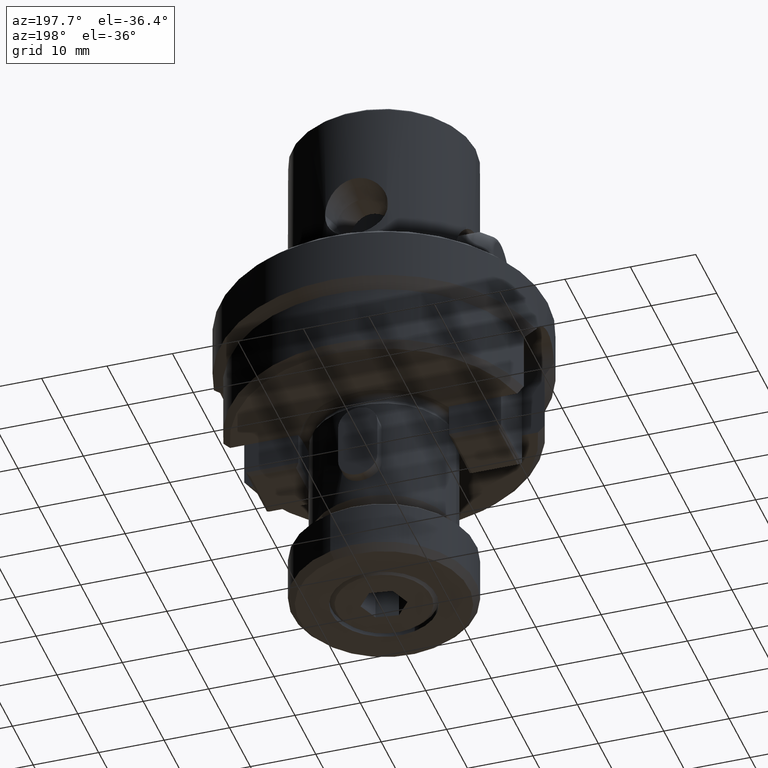
[diagram: clean part render]
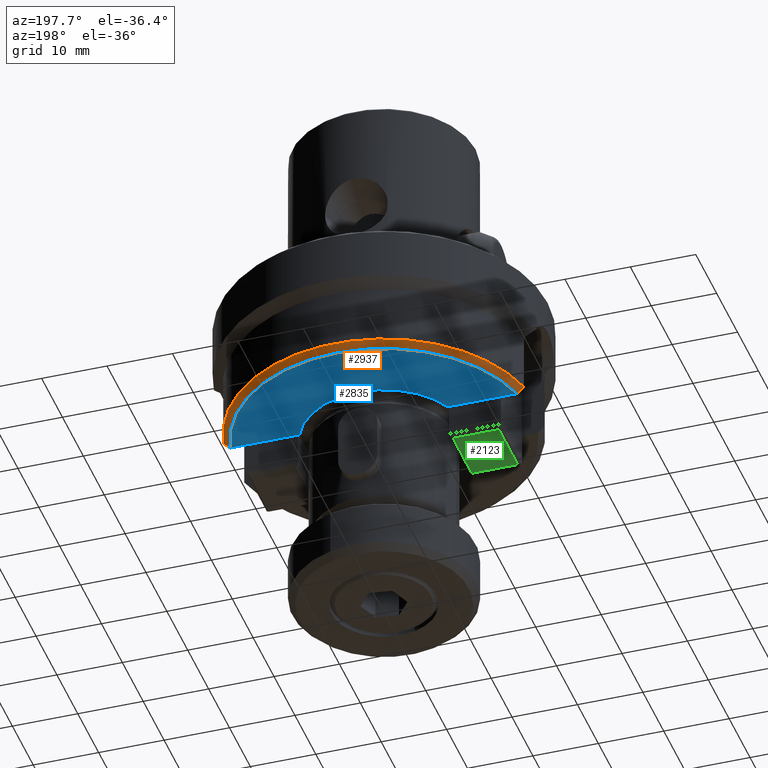
[diagram: same view with three faces highlighted in distinct colors, each labeled with its STEP entity id]
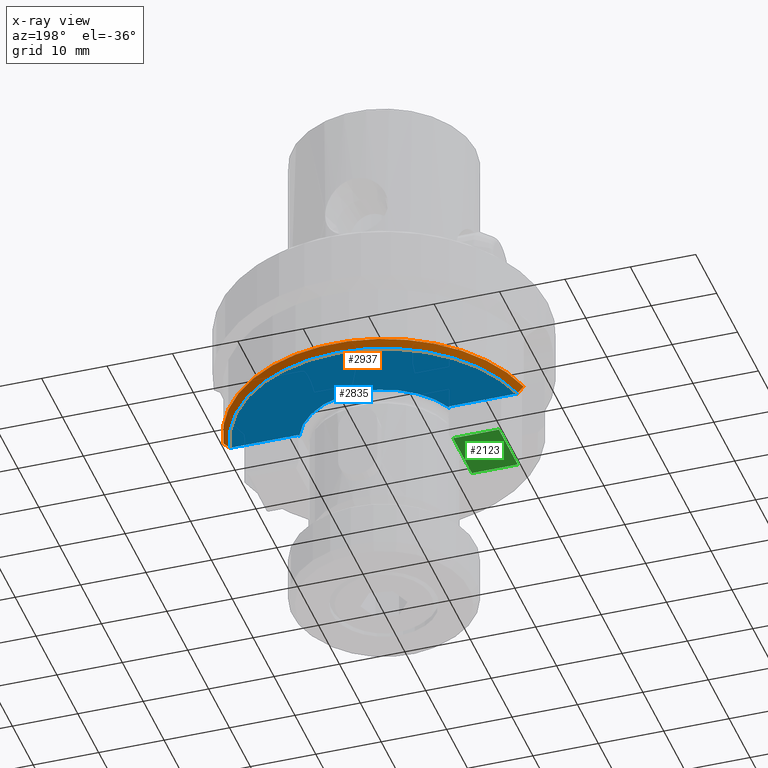
[diagram: x-ray of the same camera — body ghosted, the three highlighted faces saturated]
A machine part, auxiliary view with three faces highlighted in distinct colors.
The next image is the same camera in x-ray (body ghosted, the three faces saturated) — at least one of them is partly hidden behind the body in this view.
Their STEP definitions:

[orange] entity #2937 — the highlighted conical surface has half-angle 45 deg.
#1177=VERTEX_POINT('NONE',#3320);
#1619=VERTEX_POINT('NONE',#3823);
#1649=EDGE_CURVE('NONE',#1619,#2909,#3856,.T.);
#2495=VERTEX_POINT('NONE',#4801);
#2807=EDGE_CURVE('NONE',#1177,#2495,#5149,.T.);
#2909=VERTEX_POINT('NONE',#5260);
#2937=ADVANCED_FACE('NONE',(#5291),#5292,.T.);
#2939=EDGE_CURVE('NONE',#1619,#1177,#5294,.T.);
#2943=EDGE_CURVE('NONE',#2495,#2909,#5298,.T.);
#3320=CARTESIAN_POINT('',(-21.9374109684803,5.0,-20.0));
#3823=CARTESIAN_POINT('',(21.9374109684803,5.0,-20.0));
#3856=B_SPLINE_CURVE_WITH_KNOTS('',3,(#6707,#6708,#6709,#6710),.UNSPECIFIED.,.F.,.F.,(4,4),(0.0244728261723468,0.0259022685705429),.UNSPECIFIED.);
#4801=CARTESIAN_POINT('',(-22.9619250064101,5.0,-19.0));
#5149=B_SPLINE_CURVE_WITH_KNOTS('',3,(#8962,#8963,#8964,#8965),.UNSPECIFIED.,.F.,.F.,(4,4),(0.0244728261723468,0.0259022685705429),.UNSPECIFIED.);
#5260=CARTESIAN_POINT('',(22.9619250064101,5.0,-19.0));
#5291=FACE_OUTER_BOUND('',#9179,.T.);
#5292=CONICAL_SURFACE('',#9180,27.5,0.785398163397454);
#5294=CIRCLE('',#9183,22.5);
#5298=CIRCLE('',#9190,23.5);
#6707=CARTESIAN_POINT('',(21.9374109684803,5.0,-20.0));
#6708=CARTESIAN_POINT('',(22.2790979459101,5.0,-19.6668565490464));
#6709=CARTESIAN_POINT('',(22.6205964821224,5.0,-19.3335131905209));
#6710=CARTESIAN_POINT('',(22.9619250064101,5.0,-19.0));
#8962=CARTESIAN_POINT('',(-21.9374109684803,5.0,-20.0));
#8963=CARTESIAN_POINT('',(-22.2790979459101,5.0,-19.6668565490464));
#8964=CARTESIAN_POINT('',(-22.6205964821224,5.0,-19.3335131905209));
#8965=CARTESIAN_POINT('',(-22.9619250064101,5.0,-19.0));
#9179=EDGE_LOOP('',(#12208,#12209,#12210,#12211));
#9180=AXIS2_PLACEMENT_3D('',#12212,#12213,#12214);
#9183=AXIS2_PLACEMENT_3D('',#12215,#12216,#12217);
#9190=AXIS2_PLACEMENT_3D('',#12219,#12220,#12221);
#12208=ORIENTED_EDGE('',*,*,#2939,.T.);
#12209=ORIENTED_EDGE('',*,*,#2807,.T.);
#12210=ORIENTED_EDGE('',*,*,#2943,.T.);
#12211=ORIENTED_EDGE('',*,*,#1649,.F.);
#12212=CARTESIAN_POINT('',(0.0,0.0,-15.0000000000001));
#12213=DIRECTION('',(-0.0,-0.0,1.0));
#12214=DIRECTION('',(1.0,0.0,0.0));
#12215=CARTESIAN_POINT('',(0.0,0.0,-20.0));
#12216=DIRECTION('',(0.0,0.0,1.0));
#12217=DIRECTION('',(1.0,0.0,0.0));
#12219=CARTESIAN_POINT('',(0.0,0.0,-19.0));
#12220=DIRECTION('',(0.0,0.0,-1.0));
#12221=DIRECTION('',(1.0,0.0,0.0));

[blue] entity #2835 — the highlighted planar face has unit normal (0, 0, 1).
#1177=VERTEX_POINT('NONE',#3320);
#1325=EDGE_CURVE('NONE',#1665,#1957,#3488,.T.);
#1445=EDGE_CURVE('NONE',#1451,#1577,#3624,.T.);
#1451=VERTEX_POINT('NONE',#3631);
#1577=VERTEX_POINT('NONE',#3777);
#1619=VERTEX_POINT('NONE',#3823);
#1639=EDGE_CURVE('NONE',#1957,#1451,#3846,.T.);
#1665=VERTEX_POINT('NONE',#3875);
#1957=VERTEX_POINT('NONE',#4190);
#2251=EDGE_CURVE('NONE',#1665,#1177,#4523,.T.);
#2459=EDGE_CURVE('NONE',#1577,#1619,#4762,.T.);
#2835=ADVANCED_FACE('NONE',(#5179),#5180,.F.);
#2939=EDGE_CURVE('NONE',#1619,#1177,#5294,.T.);
#3320=CARTESIAN_POINT('',(-21.9374109684803,5.0,-20.0));
#3488=LINE('',#6035,#6036);
#3624=LINE('',#6280,#6281);
#3631=CARTESIAN_POINT('',(11.5,4.63788745012209,-20.0));
#3777=CARTESIAN_POINT('',(11.5,5.0,-20.0));
#3823=CARTESIAN_POINT('',(21.9374109684803,5.0,-20.0));
#3846=CIRCLE('',#6640,12.4);
#3875=CARTESIAN_POINT('',(-11.5,5.0,-20.0));
#4190=CARTESIAN_POINT('',(-11.5,4.63788745012209,-20.0));
#4523=LINE('',#7870,#7871);
#4762=LINE('',#8274,#8275);
#5179=FACE_OUTER_BOUND('',#9011,.T.);
#5180=PLANE('',#9012);
#5294=CIRCLE('',#9183,22.5);
#6035=CARTESIAN_POINT('',(-11.5,23.5,-20.0));
#6036=VECTOR('',#10047,1000.0);
#6280=CARTESIAN_POINT('',(11.5,23.5,-20.0));
#6281=VECTOR('',#10207,1000.0);
#6640=AXIS2_PLACEMENT_3D('',#10517,#10518,#10519);
#7870=CARTESIAN_POINT('',(0.0,5.0,-20.0));
#7871=VECTOR('',#11321,1000.0);
#8274=CARTESIAN_POINT('',(0.0,5.0,-20.0));
#8275=VECTOR('',#11629,1000.0);
#9011=EDGE_LOOP('',(#12082,#12083,#12084,#12085,#12086,#12087));
#9012=AXIS2_PLACEMENT_3D('',#12088,#12089,#12090);
#9183=AXIS2_PLACEMENT_3D('',#12215,#12216,#12217);
#10047=DIRECTION('',(0.0,-1.0,0.0));
#10207=DIRECTION('',(0.0,1.0,0.0));
#10517=CARTESIAN_POINT('',(0.0,0.0,-20.0));
#10518=DIRECTION('',(0.0,0.0,-1.0));
#10519=DIRECTION('',(1.0,-8.88178419700125E-016,0.0));
#11321=DIRECTION('',(-1.0,0.0,0.0));
#11629=DIRECTION('',(1.0,0.0,0.0));
#12082=ORIENTED_EDGE('',*,*,#2939,.F.);
#12083=ORIENTED_EDGE('',*,*,#2459,.F.);
#12084=ORIENTED_EDGE('',*,*,#1445,.F.);
#12085=ORIENTED_EDGE('',*,*,#1639,.F.);
#12086=ORIENTED_EDGE('',*,*,#1325,.F.);
#12087=ORIENTED_EDGE('',*,*,#2251,.T.);
#12088=CARTESIAN_POINT('',(0.0,23.5,-20.0));
#12089=DIRECTION('',(0.0,0.0,1.0));
#12090=DIRECTION('',(1.0,0.0,0.0));
#12215=CARTESIAN_POINT('',(0.0,0.0,-20.0));
#12216=DIRECTION('',(0.0,0.0,1.0));
#12217=DIRECTION('',(1.0,0.0,0.0));

[green] entity #2123 — the highlighted planar face has unit normal (0, 0, 1).
#1405=VERTEX_POINT('NONE',#3579);
#1701=VERTEX_POINT('NONE',#3913);
#1999=VERTEX_POINT('NONE',#4240);
#2123=ADVANCED_FACE('NONE',(#4377),#4378,.F.);
#2125=VERTEX_POINT('NONE',#4380);
#2487=EDGE_CURVE('NONE',#1405,#1701,#4793,.T.);
#2565=EDGE_CURVE('NONE',#2125,#1999,#4876,.T.);
#2953=EDGE_CURVE('NONE',#1999,#1405,#5309,.T.);
#2975=EDGE_CURVE('NONE',#1701,#2125,#5335,.T.);
#3579=CARTESIAN_POINT('',(-12.0,-4.5,-25.5));
#3913=CARTESIAN_POINT('',(-19.0,-4.5,-25.5));
#4240=CARTESIAN_POINT('',(-12.0,4.5,-25.5));
#4377=FACE_OUTER_BOUND('',#7600,.T.);
#4378=PLANE('',#7601);
#4380=CARTESIAN_POINT('',(-19.0,4.5,-25.5));
#4793=LINE('',#8340,#8341);
#4876=LINE('',#8496,#8497);
#5309=LINE('',#9206,#9207);
#5335=LINE('',#9238,#9239);
#7600=EDGE_LOOP('',(#11128,#11129,#11130,#11131));
#7601=AXIS2_PLACEMENT_3D('',#11132,#11133,#11134);
#8340=CARTESIAN_POINT('',(-11.5,-4.5,-25.5));
#8341=VECTOR('',#11657,1000.0);
#8496=CARTESIAN_POINT('',(-11.5,4.5,-25.5));
#8497=VECTOR('',#11720,1000.0);
#9206=CARTESIAN_POINT('',(-12.0,-5.0,-25.5));
#9207=VECTOR('',#12237,1000.0);
#9238=CARTESIAN_POINT('',(-19.0,5.0,-25.5));
#9239=VECTOR('',#12272,1000.0);
#11128=ORIENTED_EDGE('',*,*,#2975,.T.);
#11129=ORIENTED_EDGE('',*,*,#2565,.T.);
#11130=ORIENTED_EDGE('',*,*,#2953,.T.);
#11131=ORIENTED_EDGE('',*,*,#2487,.T.);
#11132=CARTESIAN_POINT('',(-11.5,5.0,-25.5));
#11133=DIRECTION('',(9.44185701076393E-034,5.68206706071685E-018,1.0));
#11134=DIRECTION('',(-4.93038065763132E-032,-1.0,5.68206706071685E-018));
#11657=DIRECTION('',(-1.0,4.93038065763132E-032,0.0));
#11720=DIRECTION('',(1.0,-4.93038065763132E-032,-0.0));
#12237=DIRECTION('',(-4.93038065763132E-032,-1.0,5.68206706071685E-018));
#12272=DIRECTION('',(4.93038065763132E-032,1.0,-5.68206706071685E-018));